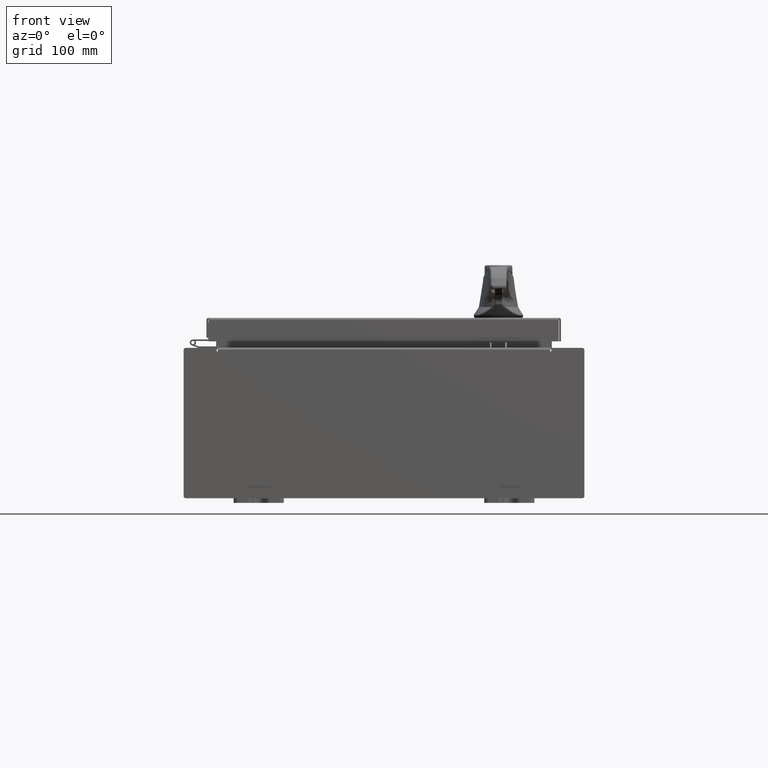
[diagram: clean part render]
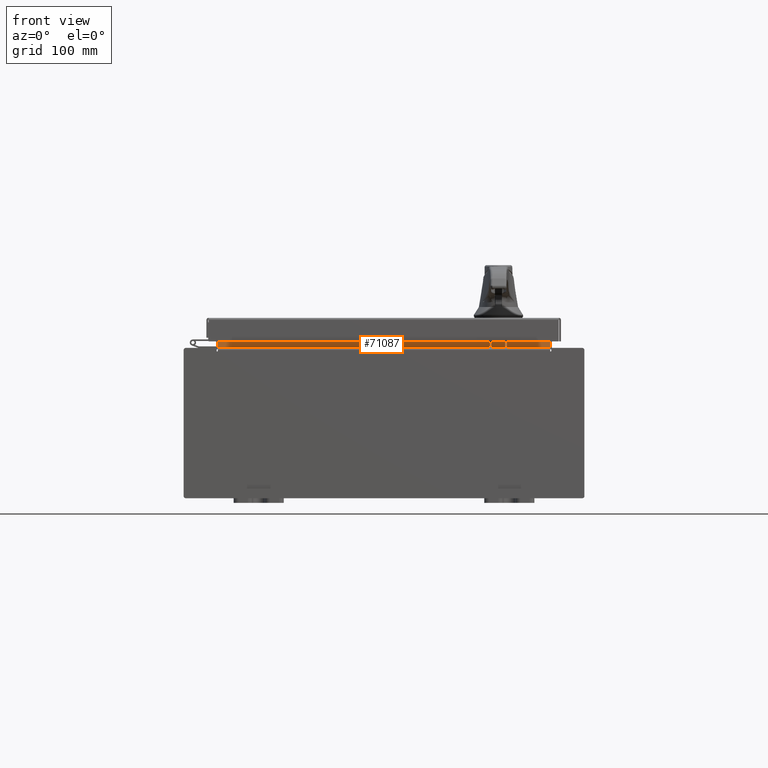
[diagram: same view with one face highlighted and labeled with its STEP entity id]
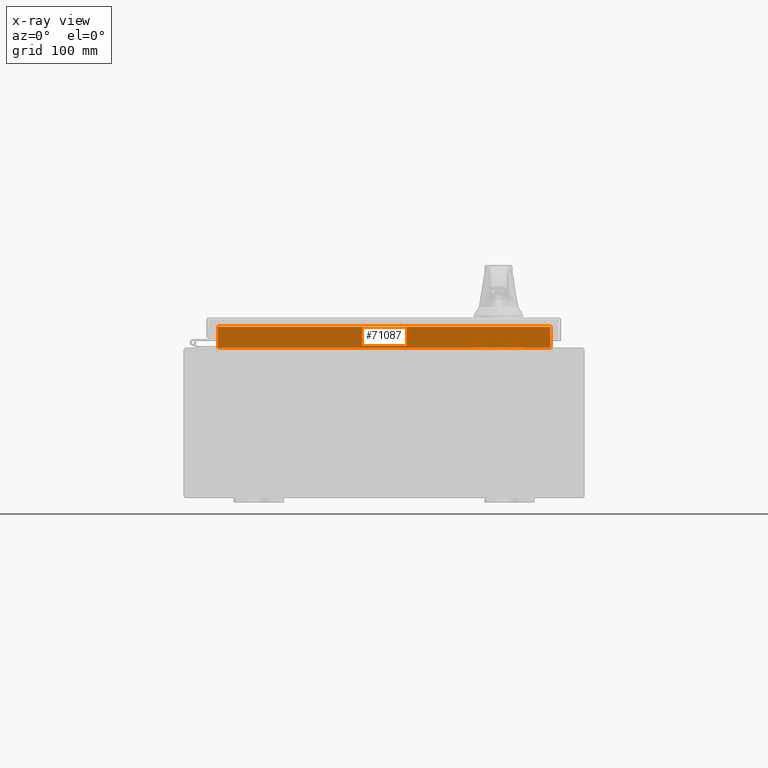
[diagram: x-ray of the same camera — body ghosted, the highlighted face saturated]
A machine part, front view. The second image highlights one B-rep face of the part: STEP entity #71087.
The next image is the same camera in x-ray: the body ghosted, the highlighted face saturated — about 0% of this face is hidden behind the body in this view.
In plain terms, the highlighted planar face has unit normal (0, -1, 0).
Its self-contained STEP definition (entity closure, byte-faithful):
#4725 = EDGE_CURVE ( 'NONE', #20782, #105349, #28500, .T. ) ;
#4872 = VECTOR ( 'NONE', #38629, 39.37007874015748100 ) ;
#8213 = CARTESIAN_POINT ( 'NONE',  ( -6.637199999999999100, -1.300299999999999800, 3.013000000000005200 ) ) ;
#10289 = DIRECTION ( 'NONE',  ( 0.0000000000000000000, -0.0000000000000000000, 1.000000000000000000 ) ) ;
#10791 = VECTOR ( 'NONE', #57558, 39.37007874015748100 ) ;
#11672 = EDGE_CURVE ( 'NONE', #105349, #79738, #71215, .T. ) ;
#17641 = DIRECTION ( 'NONE',  ( -1.000000000000000000, -0.0000000000000000000, -0.0000000000000000000 ) ) ;
#18426 = PLANE ( 'NONE',  #21414 ) ;
#20782 = VERTEX_POINT ( 'NONE', #85141 ) ;
#21414 = AXIS2_PLACEMENT_3D ( 'NONE', #94355, #60764, #10289 ) ;
#23303 = EDGE_CURVE ( 'NONE', #79738, #51316, #49678, .T. ) ;
#23617 = CARTESIAN_POINT ( 'NONE',  ( 6.637200000000000000, -1.300299999999999800, 3.837600000000005000 ) ) ;
#28500 = LINE ( 'NONE', #47322, #87882 ) ;
#28908 = ORIENTED_EDGE ( 'NONE', *, *, #11672, .F. ) ;
#30178 = CARTESIAN_POINT ( 'NONE',  ( -6.637200000000000000, -1.300299999999999800, 3.000000000000005300 ) ) ;
#32127 = CARTESIAN_POINT ( 'NONE',  ( -6.637200000000000000, -1.300299999999999800, 3.013000000000005200 ) ) ;
#34571 = CARTESIAN_POINT ( 'NONE',  ( 6.637200000000000000, -1.300300000000000000, 3.837600000000005000 ) ) ;
#35163 = CARTESIAN_POINT ( 'NONE',  ( -6.637200000000000000, -1.300300000000000000, 3.837600000000005000 ) ) ;
#38629 = DIRECTION ( 'NONE',  ( -0.0000000000000000000, -0.0000000000000000000, -1.000000000000000000 ) ) ;
#47322 = CARTESIAN_POINT ( 'NONE',  ( 6.637200000000000000, -1.300299999999999800, 3.925300000000005300 ) ) ;
#48756 = VECTOR ( 'NONE', #17641, 39.37007874015748100 ) ;
#49678 = LINE ( 'NONE', #30178, #4872 ) ;
#51316 = VERTEX_POINT ( 'NONE', #8213 ) ;
#57558 = DIRECTION ( 'NONE',  ( 1.000000000000000000, 0.0000000000000000000, -4.115964553824298400E-017 ) ) ;
#58224 = LINE ( 'NONE', #32127, #10791 ) ;
#59457 = EDGE_LOOP ( 'NONE', ( #98400, #28908, #85041, #60493 ) ) ;
#60493 = ORIENTED_EDGE ( 'NONE', *, *, #67753, .F. ) ;
#60764 = DIRECTION ( 'NONE',  ( 0.0000000000000000000, 1.000000000000000000, 0.0000000000000000000 ) ) ;
#63900 = DIRECTION ( 'NONE',  ( -0.0000000000000000000, -0.0000000000000000000, 1.000000000000000000 ) ) ;
#67753 = EDGE_CURVE ( 'NONE', #51316, #20782, #58224, .T. ) ;
#71087 = ADVANCED_FACE ( 'NONE', ( #85579 ), #18426, .T. ) ;
#71215 = LINE ( 'NONE', #34571, #48756 ) ;
#79738 = VERTEX_POINT ( 'NONE', #35163 ) ;
#85041 = ORIENTED_EDGE ( 'NONE', *, *, #4725, .F. ) ;
#85141 = CARTESIAN_POINT ( 'NONE',  ( 6.637200000000000900, -1.300299999999999800, 3.013000000000005200 ) ) ;
#85579 = FACE_OUTER_BOUND ( 'NONE', #59457, .T. ) ;
#87882 = VECTOR ( 'NONE', #63900, 39.37007874015748100 ) ;
#94355 = CARTESIAN_POINT ( 'NONE',  ( 0.0000000000000000000, -1.300299999999999800, 0.0000000000000000000 ) ) ;
#98400 = ORIENTED_EDGE ( 'NONE', *, *, #23303, .F. ) ;
#105349 = VERTEX_POINT ( 'NONE', #23617 ) ;